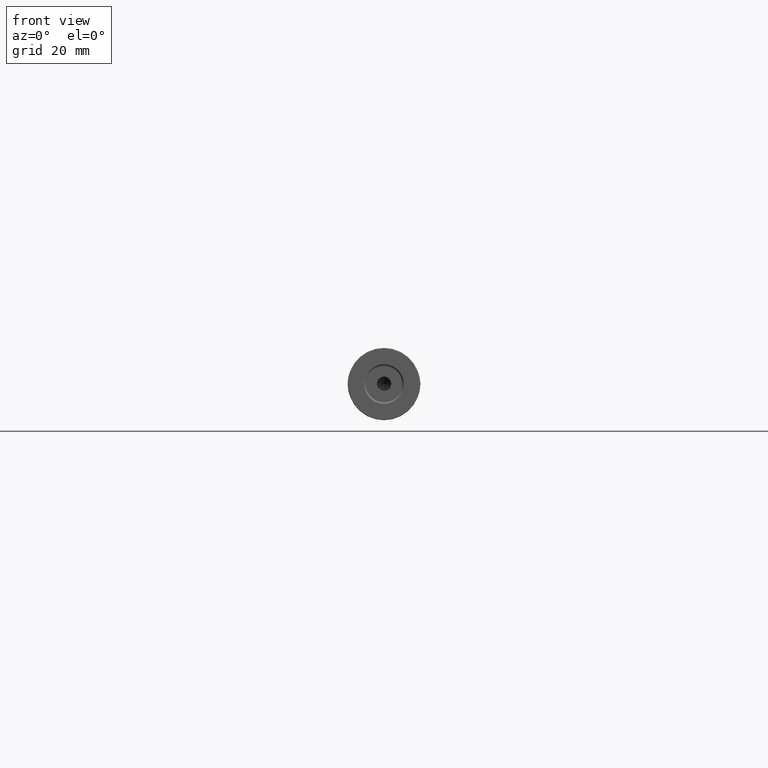
[diagram: clean part render]
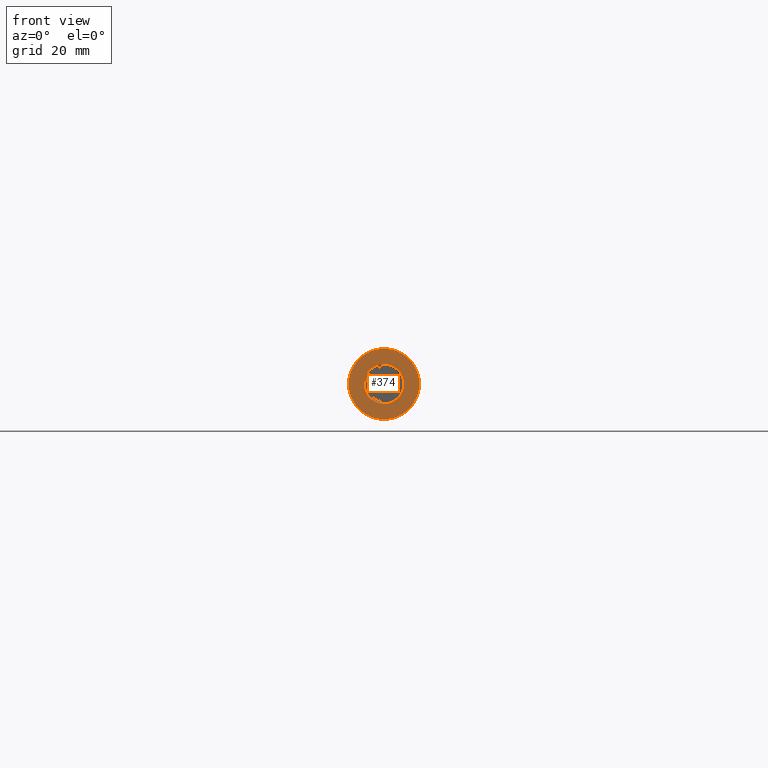
[diagram: same view with one face highlighted and labeled with its STEP entity id]
A machine part, front view. The second image highlights one B-rep face of the part: STEP entity #374.
In plain terms, the highlighted planar face has unit normal (0, 1, 0).
Its self-contained STEP definition (entity closure, byte-faithful):
#64 = ORIENTED_EDGE ( 'NONE', *, *, #888, .T. ) ;
#198 = EDGE_LOOP ( 'NONE', ( #64, #531 ) ) ;
#216 = CIRCLE ( 'NONE', #3050, 6.849999999999995204 ) ;
#285 = EDGE_LOOP ( 'NONE', ( #479, #3486 ) ) ;
#374 = ADVANCED_FACE ( 'NONE', ( #3099, #953 ), #2026, .F. ) ;
#433 = CARTESIAN_POINT ( 'NONE',  ( 0.000000000000000000, -125.0000000000000000, 0.000000000000000000 ) ) ;
#470 = DIRECTION ( 'NONE',  ( 0.000000000000000000, 1.000000000000000000, 0.000000000000000000 ) ) ;
#479 = ORIENTED_EDGE ( 'NONE', *, *, #630, .T. ) ;
#531 = ORIENTED_EDGE ( 'NONE', *, *, #1322, .T. ) ;
#630 = EDGE_CURVE ( 'NONE', #2778, #1628, #216, .T. ) ;
#662 = CIRCLE ( 'NONE', #1512, 12.25000000000000000 ) ;
#757 = DIRECTION ( 'NONE',  ( 0.000000000000000000, 0.000000000000000000, 1.000000000000000000 ) ) ;
#821 = DIRECTION ( 'NONE',  ( 0.000000000000000000, 0.000000000000000000, 1.000000000000000000 ) ) ;
#888 = EDGE_CURVE ( 'NONE', #2427, #3234, #1167, .T. ) ;
#953 = FACE_BOUND ( 'NONE', #285, .T. ) ;
#1114 = CIRCLE ( 'NONE', #1962, 6.849999999999995204 ) ;
#1167 = CIRCLE ( 'NONE', #1629, 12.25000000000000000 ) ;
#1174 = CARTESIAN_POINT ( 'NONE',  ( 0.000000000000000000, -125.0000000000000000, 0.000000000000000000 ) ) ;
#1260 = DIRECTION ( 'NONE',  ( 0.000000000000000000, 0.000000000000000000, 1.000000000000000000 ) ) ;
#1322 = EDGE_CURVE ( 'NONE', #3234, #2427, #662, .T. ) ;
#1459 = CARTESIAN_POINT ( 'NONE',  ( 8.388830574159362973E-16, -125.0000000000000000, 6.849999999999995204 ) ) ;
#1512 = AXIS2_PLACEMENT_3D ( 'NONE', #1174, #2260, #821 ) ;
#1559 = DIRECTION ( 'NONE',  ( -0.000000000000000000, -1.000000000000000000, -0.000000000000000000 ) ) ;
#1628 = VERTEX_POINT ( 'NONE', #1459 ) ;
#1629 = AXIS2_PLACEMENT_3D ( 'NONE', #3195, #1559, #757 ) ;
#1883 = DIRECTION ( 'NONE',  ( 0.000000000000000000, 1.000000000000000000, 0.000000000000000000 ) ) ;
#1962 = AXIS2_PLACEMENT_3D ( 'NONE', #433, #470, #1260 ) ;
#2026 = PLANE ( 'NONE',  #2766 ) ;
#2171 = DIRECTION ( 'NONE',  ( 0.000000000000000000, 0.000000000000000000, 1.000000000000000000 ) ) ;
#2260 = DIRECTION ( 'NONE',  ( -0.000000000000000000, -1.000000000000000000, -0.000000000000000000 ) ) ;
#2339 = CARTESIAN_POINT ( 'NONE',  ( 1.515500413944849628E-15, -125.0000000000000000, -12.25000000000000000 ) ) ;
#2427 = VERTEX_POINT ( 'NONE', #3425 ) ;
#2439 = CARTESIAN_POINT ( 'NONE',  ( 0.000000000000000000, -125.0000000000000000, 0.000000000000000000 ) ) ;
#2766 = AXIS2_PLACEMENT_3D ( 'NONE', #3124, #1883, #2978 ) ;
#2778 = VERTEX_POINT ( 'NONE', #2991 ) ;
#2935 = EDGE_CURVE ( 'NONE', #1628, #2778, #1114, .T. ) ;
#2978 = DIRECTION ( 'NONE',  ( 0.000000000000000000, -0.000000000000000000, 1.000000000000000000 ) ) ;
#2991 = CARTESIAN_POINT ( 'NONE',  ( 0.000000000000000000, -125.0000000000000000, -6.849999999999995204 ) ) ;
#3050 = AXIS2_PLACEMENT_3D ( 'NONE', #2439, #3465, #2171 ) ;
#3099 = FACE_OUTER_BOUND ( 'NONE', #198, .T. ) ;
#3124 = CARTESIAN_POINT ( 'NONE',  ( 0.000000000000000000, -125.0000000000000000, 0.000000000000000000 ) ) ;
#3195 = CARTESIAN_POINT ( 'NONE',  ( 0.000000000000000000, -125.0000000000000000, 0.000000000000000000 ) ) ;
#3234 = VERTEX_POINT ( 'NONE', #2339 ) ;
#3425 = CARTESIAN_POINT ( 'NONE',  ( 0.000000000000000000, -125.0000000000000000, 12.25000000000000000 ) ) ;
#3465 = DIRECTION ( 'NONE',  ( 0.000000000000000000, 1.000000000000000000, 0.000000000000000000 ) ) ;
#3486 = ORIENTED_EDGE ( 'NONE', *, *, #2935, .T. ) ;